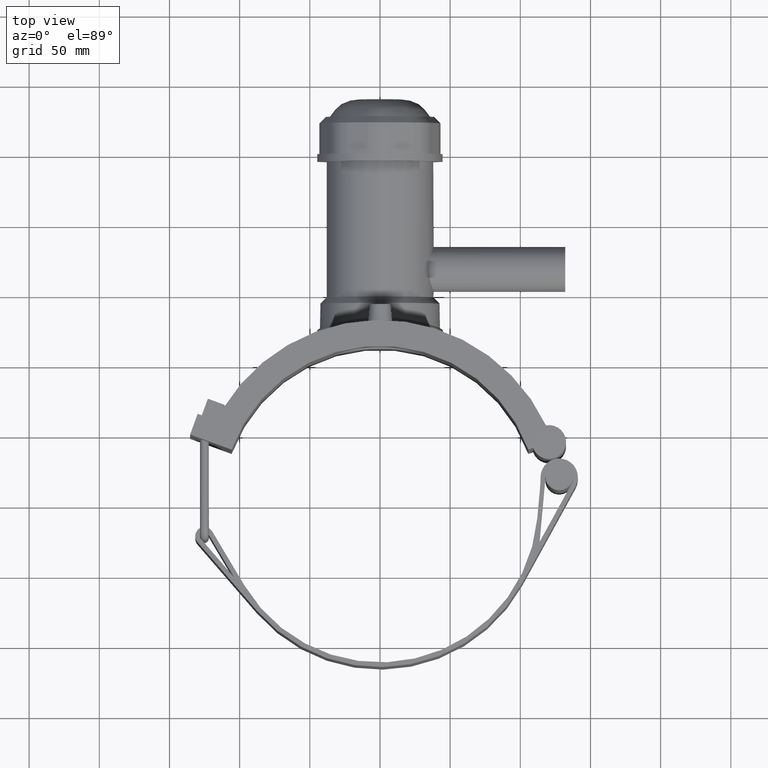
[diagram: clean part render]
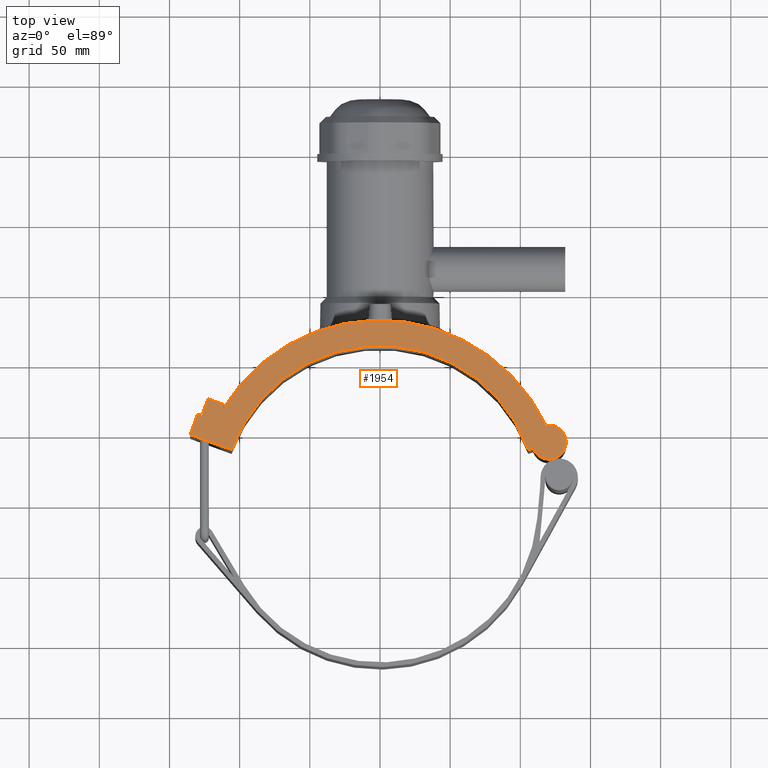
[diagram: same view with one face highlighted and labeled with its STEP entity id]
A machine part, top view. The second image highlights one B-rep face of the part: STEP entity #1954.
In plain terms, the highlighted planar face has unit normal (0, 0, 1).
Its self-contained STEP definition (entity closure, byte-faithful):
#139=LINE('',#3466,#300);
#170=LINE('',#3537,#331);
#171=LINE('',#3540,#332);
#173=LINE('',#3544,#334);
#175=LINE('',#3548,#336);
#178=LINE('',#3553,#339);
#180=LINE('',#3559,#341);
#300=VECTOR('',#2560,31.4999999999999);
#331=VECTOR('',#2629,2.57206903182395);
#332=VECTOR('',#2632,15.75);
#334=VECTOR('',#2636,3.15000000000003);
#336=VECTOR('',#2640,12.6);
#339=VECTOR('',#2645,12.6);
#341=VECTOR('',#2651,3.63461538461539);
#533=FACE_OUTER_BOUND('',#675,.T.);
#675=EDGE_LOOP('',(#1651,#1652,#1653,#1654,#1655,#1656,#1657,#1658,#1659,
#1660));
#793=CIRCLE('',#2145,112.5);
#794=CIRCLE('',#2146,12.1153846153846);
#795=CIRCLE('',#2147,130.815);
#943=VERTEX_POINT('',#3463);
#944=VERTEX_POINT('',#3465);
#961=VERTEX_POINT('',#3526);
#965=VERTEX_POINT('',#3535);
#966=VERTEX_POINT('',#3539);
#967=VERTEX_POINT('',#3543);
#968=VERTEX_POINT('',#3547);
#970=VERTEX_POINT('',#3556);
#971=VERTEX_POINT('',#3558);
#972=VERTEX_POINT('',#3560);
#1169=EDGE_CURVE('',#944,#943,#139,.T.);
#1206=EDGE_CURVE('',#965,#961,#170,.T.);
#1207=EDGE_CURVE('',#944,#966,#171,.T.);
#1209=EDGE_CURVE('',#966,#967,#173,.T.);
#1211=EDGE_CURVE('',#967,#968,#175,.T.);
#1214=EDGE_CURVE('',#968,#965,#178,.T.);
#1216=EDGE_CURVE('',#943,#970,#793,.T.);
#1217=EDGE_CURVE('',#970,#971,#180,.T.);
#1218=EDGE_CURVE('',#971,#972,#794,.T.);
#1219=EDGE_CURVE('',#972,#961,#795,.T.);
#1651=ORIENTED_EDGE('',*,*,#1169,.T.);
#1652=ORIENTED_EDGE('',*,*,#1216,.T.);
#1653=ORIENTED_EDGE('',*,*,#1217,.T.);
#1654=ORIENTED_EDGE('',*,*,#1218,.T.);
#1655=ORIENTED_EDGE('',*,*,#1219,.T.);
#1656=ORIENTED_EDGE('',*,*,#1206,.F.);
#1657=ORIENTED_EDGE('',*,*,#1214,.F.);
#1658=ORIENTED_EDGE('',*,*,#1211,.F.);
#1659=ORIENTED_EDGE('',*,*,#1209,.F.);
#1660=ORIENTED_EDGE('',*,*,#1207,.F.);
#1854=PLANE('',#2144);
#1954=ADVANCED_FACE('',(#533),#1854,.T.);
#2144=AXIS2_PLACEMENT_3D('',#3555,#2647,#2648);
#2145=AXIS2_PLACEMENT_3D('',#3557,#2649,#2650);
#2146=AXIS2_PLACEMENT_3D('',#3561,#2652,#2653);
#2147=AXIS2_PLACEMENT_3D('',#3562,#2654,#2655);
#2560=DIRECTION('',(0.939692620785908,-0.342020143325669,0.));
#2629=DIRECTION('',(-0.342020143325672,-0.939692620785907,0.));
#2632=DIRECTION('',(0.342020143325668,0.939692620785909,0.));
#2636=DIRECTION('',(0.939692620785908,-0.342020143325669,0.));
#2640=DIRECTION('',(0.342020143325669,0.939692620785908,0.));
#2645=DIRECTION('',(0.939692620785909,-0.342020143325668,0.));
#2647=DIRECTION('center_axis',(0.,0.,1.));
#2648=DIRECTION('ref_axis',(1.,0.,0.));
#2649=DIRECTION('center_axis',(0.,0.,-1.));
#2650=DIRECTION('ref_axis',(-1.,0.,0.));
#2651=DIRECTION('',(0.939692620785908,0.342020143325669,0.));
#2652=DIRECTION('center_axis',(0.,0.,1.));
#2653=DIRECTION('ref_axis',(-1.,0.,0.));
#2654=DIRECTION('center_axis',(0.,0.,1.));
#2655=DIRECTION('ref_axis',(0.976614427290077,0.21499828001376,0.));
#3463=CARTESIAN_POINT('',(-105.715419838415,38.4772661241378,88.));
#3465=CARTESIAN_POINT('',(-135.315737393171,49.2509006388962,88.));
#3466=CARTESIAN_POINT('',(-122.402768893554,44.5509644690188,88.));
#3526=CARTESIAN_POINT('',(-111.699006971418,68.0874148914405,88.));
#3535=CARTESIAN_POINT('',(-110.81930755251,70.5043691807975,88.));
#3537=CARTESIAN_POINT('',(-115.610694289126,57.3401423140699,88.));
#3539=CARTESIAN_POINT('',(-129.928920135791,64.0510594162743,88.));
#3540=CARTESIAN_POINT('',(-130.410853066504,62.7269595714492,88.));
#3543=CARTESIAN_POINT('',(-126.968888380316,62.9736959647984,88.));
#3544=CARTESIAN_POINT('',(-108.593453353356,56.2855845732926,88.));
#3547=CARTESIAN_POINT('',(-122.659434574412,74.8138229867009,88.));
#3548=CARTESIAN_POINT('',(-125.296094408077,67.5696596309246,88.));
#3553=CARTESIAN_POINT('',(-111.684078936142,70.8191202238847,88.));
#3555=CARTESIAN_POINT('Origin',(-138.02557242982,1.02542712232171E-16,88.));
#3556=CARTESIAN_POINT('',(105.715419838415,38.4772661241377,88.));
#3557=CARTESIAN_POINT('Origin',(0.,0.,88.));
#3558=CARTESIAN_POINT('',(109.130841094733,39.7203777989176,88.));
#3559=CARTESIAN_POINT('',(-60.9398237995001,-22.1802819444451,88.));
#3560=CARTESIAN_POINT('',(118.326455748415,55.7800510489045,88.));
#3561=CARTESIAN_POINT('Origin',(120.515578615793,43.864083381517,88.));
#3562=CARTESIAN_POINT('Origin',(0.,0.,88.));